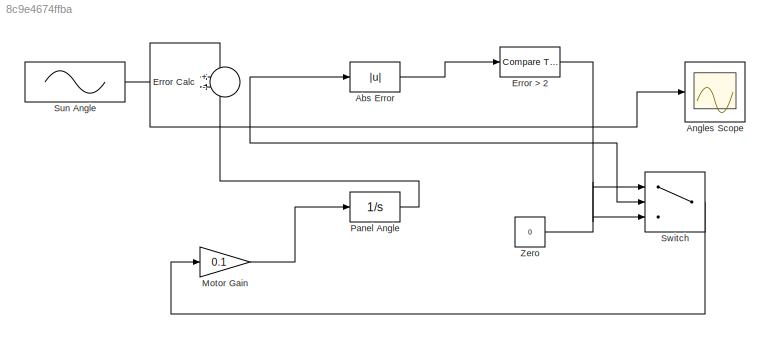
MODEL slx_8c9e4674ffba
KIND model
CONFIG AbsTol = auto
CONFIG EnableMultiTasking = off
CONFIG FixedStep = auto
CONFIG MaxStep = auto
CONFIG MinStep = auto
CONFIG RelTol = 1e-3
CONFIG SampleTimeConstraint = Unconstrained
CONFIG SolverName = VariableStepAuto
CONFIG StartTime = 0.0
CONFIG StopTime = 10.0
BLOCK [Abs] Abs Error
  SaturateOnIntegerOverflow = off
BLOCK [Scope] Angles Scope
  Floating = off
  NumInputPorts = 1
  ScopeSpecificationString = Simulink.scopes.TimeScopeBlockCfg('CurrentConfiguration', extmgr.ConfigurationSet(extmgr.Configuration('Core','General UI',true),extmgr.Configuration('Core','Source UI',true),extmgr.Configuration('Sources','WiredSimulink',true),extmgr.Configuration('Visuals','Time Domain',true,'SerializedDisplays',{struct('MinYLimReal','89.99182','MaxYLimReal','90.07363','YLabelReal','','MinYLimMag','89.99182','Ma...<+1424ch>
BLOCK [Reference] Error > 2  REF=simulink/Logic and Bit
Operations/Compare
To Constant
  SourceBlock = simulink/Logic and Bit\nOperations/Compare\nTo Constant
  SourceType = Compare To Constant
BLOCK [Sum] Error Calc
  Inputs = +-
BLOCK [Gain] Motor Gain
  Gain = 0.1
BLOCK [Integrator] Panel Angle
BLOCK [Sin] Sun Angle
  Amplitude = 90
  Bias = 90
  Frequency = 2*pi/86400
  SampleTime = 1
BLOCK [Switch] Switch
  Criteria = u2 > Threshold
  InputSameDT = off
  SaturateOnIntegerOverflow = off
  Threshold = 0.5
BLOCK [Constant] Zero
  Value = 0
LINE Abs Error:1 -> Error > 2:1
LINE Error > 2:1 -> Switch:3
NET Error Calc:1 -> Abs Error:1, Switch:2
LINE Motor Gain:1 -> Panel Angle:1
LINE Panel Angle:1 -> Error Calc:2
NET Sun Angle:1 -> Angles Scope:1, Error Calc:1
LINE Switch:1 -> Motor Gain:1
LINE Zero:1 -> Switch:1
note: NET lines group one-source signal fan-out (src -> all destinations, sorted); 1:1 wires keep LINE
